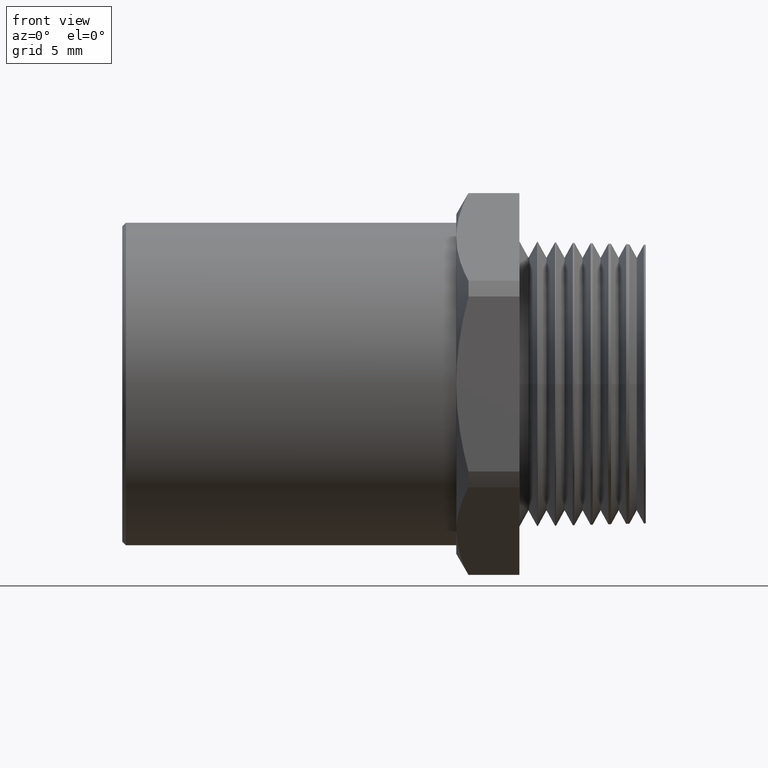
[diagram: clean part render]
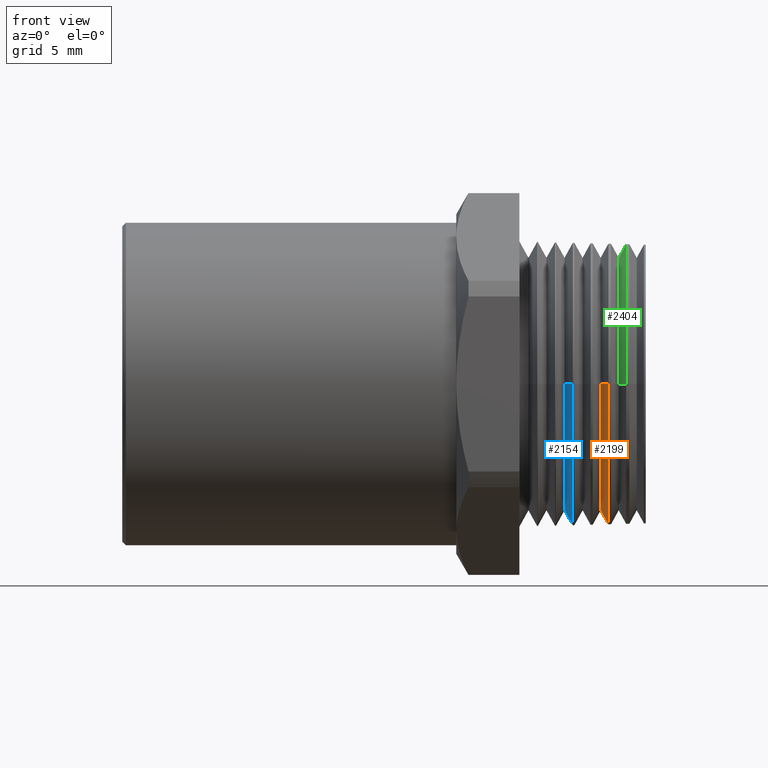
[diagram: same view with three faces highlighted in distinct colors, each labeled with its STEP entity id]
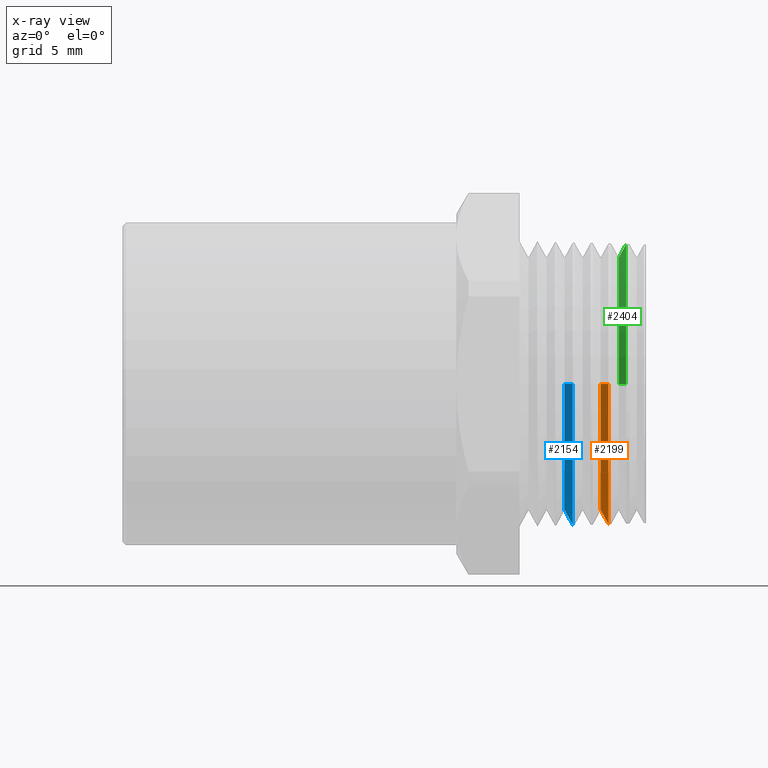
[diagram: x-ray of the same camera — body ghosted, the three highlighted faces saturated]
A machine part, front view with three faces highlighted in distinct colors.
The next image is the same camera in x-ray (body ghosted, the three faces saturated) — at least one of them is partly hidden behind the body in this view.
Their STEP definitions:

[orange] entity #2199 — the highlighted conical surface has half-angle 60 deg.
#1442 = CARTESIAN_POINT ( 'NONE',  ( -0.1249300749675650600, -5.302918518385447500E-017, 0.0000000000000000000 ) ) ;
#1445 = DIRECTION ( 'NONE',  ( 4.856409844776331700E-017, 1.000000000000000000, 0.0000000000000000000 ) ) ;
#1446 = DIRECTION ( 'NONE',  ( 1.000000000000000000, -3.789761643835506200E-017, 0.0000000000000000000 ) ) ;
#1447 = AXIS2_PLACEMENT_3D ( 'NONE', #1454, #1446, #1445 ) ;
#1449 = CONICAL_SURFACE ( 'NONE', #1447, 0.3515776161018801500, 1.047197551196605600 ) ;
#1450 = FACE_OUTER_BOUND ( 'NONE', #2156, .T. ) ;
#1454 = CARTESIAN_POINT ( 'NONE',  ( -0.1249300749675650600, -5.302918518385447500E-017, 0.0000000000000000000 ) ) ;
#1500 = DIRECTION ( 'NONE',  ( 4.856409844776331700E-017, 1.000000000000000000, 0.0000000000000000000 ) ) ;
#1501 = DIRECTION ( 'NONE',  ( 1.000000000000000000, -3.789761643835506200E-017, 0.0000000000000000000 ) ) ;
#1502 = AXIS2_PLACEMENT_3D ( 'NONE', #1442, #1501, #1500 ) ;
#1503 = CIRCLE ( 'NONE', #1502, 0.3515776161018801500 ) ;
#1595 = DIRECTION ( 'NONE',  ( 4.394328592221856100E-017, 1.000000000000000000, 0.0000000000000000000 ) ) ;
#1596 = DIRECTION ( 'NONE',  ( 1.000000000000000000, -3.789761643835506200E-017, 0.0000000000000000000 ) ) ;
#1597 = CARTESIAN_POINT ( 'NONE',  ( -0.1035855541350183700, 0.0000000000000000000, 0.0000000000000000000 ) ) ;
#1598 = AXIS2_PLACEMENT_3D ( 'NONE', #1597, #1596, #1595 ) ;
#1599 = CIRCLE ( 'NONE', #1598, 0.3885474106470649900 ) ;
#1630 = DIRECTION ( 'NONE',  ( 0.4999999999999932300, 0.8660254037844425900, 0.0000000000000000000 ) ) ;
#1631 = VECTOR ( 'NONE', #1630, 39.37007874015748100 ) ;
#1632 = CARTESIAN_POINT ( 'NONE',  ( -0.1249300749675650400, 0.3515776161018801000, 0.0000000000000000000 ) ) ;
#1633 = LINE ( 'NONE', #1632, #1631 ) ;
#1759 = DIRECTION ( 'NONE',  ( 4.394328592221856100E-017, 1.000000000000000000, 0.0000000000000000000 ) ) ;
#1760 = DIRECTION ( 'NONE',  ( 1.000000000000000000, -3.789761643835506200E-017, 0.0000000000000000000 ) ) ;
#1761 = CARTESIAN_POINT ( 'NONE',  ( -0.1035855541350183700, 0.0000000000000000000, 0.0000000000000000000 ) ) ;
#1762 = AXIS2_PLACEMENT_3D ( 'NONE', #1761, #1760, #1759 ) ;
#1763 = CIRCLE ( 'NONE', #1762, 0.3885474106470649900 ) ;
#1770 = CARTESIAN_POINT ( 'NONE',  ( -0.1035855541350183500, 0.3885474106470640500, 0.0000000000000000000 ) ) ;
#1799 = CARTESIAN_POINT ( 'NONE',  ( -0.1035855541350183800, -0.3885474106470641600, 4.758333427659192400E-017 ) ) ;
#1813 = CARTESIAN_POINT ( 'NONE',  ( -0.1035855541350183700, 4.758333427659204100E-017, -0.3885474106470649900 ) ) ;
#1828 = CARTESIAN_POINT ( 'NONE',  ( -0.1249300749675650400, 0.3515776161018801000, 4.538908665950691700E-017 ) ) ;
#1829 = CARTESIAN_POINT ( 'NONE',  ( -0.1249300749675650900, -0.3515776161018802600, 0.0000000000000000000 ) ) ;
#1830 = DIRECTION ( 'NONE',  ( 0.4999999999999931200, -0.8660254037844425900, 1.060575238724911700E-016 ) ) ;
#1831 = VECTOR ( 'NONE', #1830, 39.37007874015748100 ) ;
#1832 = CARTESIAN_POINT ( 'NONE',  ( -0.1249300749675650900, -0.3515776161018802600, 4.305584022110244700E-017 ) ) ;
#1836 = LINE ( 'NONE', #1832, #1831 ) ;
#2156 = EDGE_LOOP ( 'NONE', ( #2158, #2197, #2165, #2196, #2185 ) ) ;
#2158 = ORIENTED_EDGE ( 'NONE', *, *, #2381, .F. ) ;
#2165 = ORIENTED_EDGE ( 'NONE', *, *, #2307, .T. ) ;
#2185 = ORIENTED_EDGE ( 'NONE', *, *, #2293, .F. ) ;
#2196 = ORIENTED_EDGE ( 'NONE', *, *, #2356, .F. ) ;
#2197 = ORIENTED_EDGE ( 'NONE', *, *, #2206, .T. ) ;
#2199 = ADVANCED_FACE ( 'NONE', ( #1450 ), #1449, .T. ) ;
#2206 = EDGE_CURVE ( 'NONE', #2383, #2384, #1503, .T. ) ;
#2293 = EDGE_CURVE ( 'NONE', #2368, #2394, #1599, .T. ) ;
#2307 = EDGE_CURVE ( 'NONE', #2384, #2353, #1633, .T. ) ;
#2353 = VERTEX_POINT ( 'NONE', #1770 ) ;
#2356 = EDGE_CURVE ( 'NONE', #2394, #2353, #1763, .T. ) ;
#2368 = VERTEX_POINT ( 'NONE', #1799 ) ;
#2381 = EDGE_CURVE ( 'NONE', #2383, #2368, #1836, .T. ) ;
#2383 = VERTEX_POINT ( 'NONE', #1829 ) ;
#2384 = VERTEX_POINT ( 'NONE', #1828 ) ;
#2394 = VERTEX_POINT ( 'NONE', #1813 ) ;

[blue] entity #2154 — the highlighted conical surface has half-angle 60 deg.
#25 = EDGE_CURVE ( 'NONE', #28, #74, #381, .T. ) ;
#28 = VERTEX_POINT ( 'NONE', #376 ) ;
#29 = EDGE_CURVE ( 'NONE', #71, #69, #375, .T. ) ;
#69 = VERTEX_POINT ( 'NONE', #477 ) ;
#71 = VERTEX_POINT ( 'NONE', #472 ) ;
#74 = VERTEX_POINT ( 'NONE', #471 ) ;
#153 = EDGE_CURVE ( 'NONE', #2400, #69, #645, .T. ) ;
#156 = EDGE_CURVE ( 'NONE', #74, #2400, #703, .T. ) ;
#372 = DIRECTION ( 'NONE',  ( 0.4999999999999932300, 0.8660254037844425900, 0.0000000000000000000 ) ) ;
#373 = VECTOR ( 'NONE', #372, 39.37007874015748100 ) ;
#374 = CARTESIAN_POINT ( 'NONE',  ( -0.2249300749675650600, 0.3515776161018801000, 0.0000000000000000000 ) ) ;
#375 = LINE ( 'NONE', #374, #373 ) ;
#376 = CARTESIAN_POINT ( 'NONE',  ( -0.2249300749675650600, -0.3515776161018802600, 0.0000000000000000000 ) ) ;
#378 = DIRECTION ( 'NONE',  ( 0.4999999999999931200, -0.8660254037844425900, 1.060575238724911700E-016 ) ) ;
#379 = VECTOR ( 'NONE', #378, 39.37007874015748100 ) ;
#380 = CARTESIAN_POINT ( 'NONE',  ( -0.2249300749675650600, -0.3515776161018802600, 4.305584022110244700E-017 ) ) ;
#381 = LINE ( 'NONE', #380, #379 ) ;
#471 = CARTESIAN_POINT ( 'NONE',  ( -0.2020962255858389800, -0.3911270033634056700, 4.789924327290907800E-017 ) ) ;
#472 = CARTESIAN_POINT ( 'NONE',  ( -0.2249300749675650600, 0.3515776161018801000, 4.555189052660918200E-017 ) ) ;
#477 = CARTESIAN_POINT ( 'NONE',  ( -0.2020962255858389800, 0.3911270033634056100, 0.0000000000000000000 ) ) ;
#643 = CARTESIAN_POINT ( 'NONE',  ( -0.2020962255858389800, 0.0000000000000000000, 0.0000000000000000000 ) ) ;
#644 = AXIS2_PLACEMENT_3D ( 'NONE', #643, #705, #704 ) ;
#645 = CIRCLE ( 'NONE', #644, 0.3911270033634041100 ) ;
#646 = CARTESIAN_POINT ( 'NONE',  ( -0.2020962255858389800, 0.0000000000000000000, 0.0000000000000000000 ) ) ;
#700 = DIRECTION ( 'NONE',  ( 0.0000000000000000000, 1.000000000000000000, 0.0000000000000000000 ) ) ;
#701 = DIRECTION ( 'NONE',  ( 1.000000000000000000, -3.789761643835506200E-017, 0.0000000000000000000 ) ) ;
#702 = AXIS2_PLACEMENT_3D ( 'NONE', #646, #701, #700 ) ;
#703 = CIRCLE ( 'NONE', #702, 0.3911270033634041100 ) ;
#704 = DIRECTION ( 'NONE',  ( 0.0000000000000000000, 1.000000000000000000, 0.0000000000000000000 ) ) ;
#705 = DIRECTION ( 'NONE',  ( 1.000000000000000000, -3.789761643835506200E-017, 0.0000000000000000000 ) ) ;
#1343 = CIRCLE ( 'NONE', #1405, 0.3515776161018801500 ) ;
#1384 = DIRECTION ( 'NONE',  ( 0.0000000000000000000, 1.000000000000000000, 0.0000000000000000000 ) ) ;
#1385 = DIRECTION ( 'NONE',  ( 1.000000000000000000, -3.789761643835506200E-017, 0.0000000000000000000 ) ) ;
#1386 = AXIS2_PLACEMENT_3D ( 'NONE', #1388, #1385, #1384 ) ;
#1387 = CONICAL_SURFACE ( 'NONE', #1386, 0.3515776161018801500, 1.047197551196605600 ) ;
#1388 = CARTESIAN_POINT ( 'NONE',  ( -0.2249300749675650600, -4.923942354001896300E-017, 0.0000000000000000000 ) ) ;
#1389 = FACE_OUTER_BOUND ( 'NONE', #2147, .T. ) ;
#1402 = DIRECTION ( 'NONE',  ( 0.0000000000000000000, 1.000000000000000000, 0.0000000000000000000 ) ) ;
#1403 = DIRECTION ( 'NONE',  ( 1.000000000000000000, -3.789761643835506200E-017, 0.0000000000000000000 ) ) ;
#1404 = CARTESIAN_POINT ( 'NONE',  ( -0.2249300749675650600, -4.923942354001896300E-017, 0.0000000000000000000 ) ) ;
#1405 = AXIS2_PLACEMENT_3D ( 'NONE', #1404, #1403, #1402 ) ;
#1863 = CARTESIAN_POINT ( 'NONE',  ( -0.2020962255858389800, 4.789924327290888700E-017, -0.3911270033634041100 ) ) ;
#2142 = ORIENTED_EDGE ( 'NONE', *, *, #25, .F. ) ;
#2147 = EDGE_LOOP ( 'NONE', ( #2142, #2171, #2167, #2170, #2166 ) ) ;
#2148 = EDGE_CURVE ( 'NONE', #28, #71, #1343, .T. ) ;
#2154 = ADVANCED_FACE ( 'NONE', ( #1389 ), #1387, .T. ) ;
#2166 = ORIENTED_EDGE ( 'NONE', *, *, #156, .F. ) ;
#2167 = ORIENTED_EDGE ( 'NONE', *, *, #29, .T. ) ;
#2170 = ORIENTED_EDGE ( 'NONE', *, *, #153, .F. ) ;
#2171 = ORIENTED_EDGE ( 'NONE', *, *, #2148, .T. ) ;
#2400 = VERTEX_POINT ( 'NONE', #1863 ) ;

[green] entity #2404 — the highlighted conical surface has half-angle 60 deg.
#1665 = CARTESIAN_POINT ( 'NONE',  ( -0.05433021840960587000, 0.0000000000000000000, 0.3872576142888953800 ) ) ;
#1698 = CARTESIAN_POINT ( 'NONE',  ( -0.05433021840960585600, 0.3872576142888969300, 0.0000000000000000000 ) ) ;
#1709 = DIRECTION ( 'NONE',  ( 4.408964299321523400E-017, 1.000000000000000000, 0.0000000000000000000 ) ) ;
#1710 = DIRECTION ( 'NONE',  ( 1.000000000000000000, -3.789761643835506200E-017, 0.0000000000000000000 ) ) ;
#1711 = CARTESIAN_POINT ( 'NONE',  ( -0.05433021840960587000, 0.0000000000000000000, 0.0000000000000000000 ) ) ;
#1712 = AXIS2_PLACEMENT_3D ( 'NONE', #1711, #1710, #1709 ) ;
#1713 = CIRCLE ( 'NONE', #1712, 0.3872576142888953800 ) ;
#1714 = DIRECTION ( 'NONE',  ( 0.4999999999999932300, 0.8660254037844425900, 0.0000000000000000000 ) ) ;
#1715 = VECTOR ( 'NONE', #1714, 39.37007874015748100 ) ;
#1716 = CARTESIAN_POINT ( 'NONE',  ( -0.07493007496756502700, 0.3515776161018801000, 0.0000000000000000000 ) ) ;
#1720 = LINE ( 'NONE', #1716, #1715 ) ;
#1747 = DIRECTION ( 'NONE',  ( 4.408964299321523400E-017, 1.000000000000000000, 0.0000000000000000000 ) ) ;
#1748 = DIRECTION ( 'NONE',  ( 1.000000000000000000, -3.789761643835506200E-017, 0.0000000000000000000 ) ) ;
#1749 = CARTESIAN_POINT ( 'NONE',  ( -0.05433021840960587000, 0.0000000000000000000, 0.0000000000000000000 ) ) ;
#1750 = AXIS2_PLACEMENT_3D ( 'NONE', #1749, #1748, #1747 ) ;
#1751 = CIRCLE ( 'NONE', #1750, 0.3872576142888953800 ) ;
#1758 = CARTESIAN_POINT ( 'NONE',  ( -0.05433021840960589000, -0.3872576142888971000, 4.742537977843380900E-017 ) ) ;
#1798 = CARTESIAN_POINT ( 'NONE',  ( -0.07493007496756506900, -0.3515776161018802600, 0.0000000000000000000 ) ) ;
#1800 = DIRECTION ( 'NONE',  ( 0.4999999999999931200, -0.8660254037844425900, 1.060575238724911700E-016 ) ) ;
#1801 = VECTOR ( 'NONE', #1800, 39.37007874015748100 ) ;
#1802 = CARTESIAN_POINT ( 'NONE',  ( -0.07493007496756506900, -0.3515776161018802600, 4.305584022110244700E-017 ) ) ;
#1803 = LINE ( 'NONE', #1802, #1801 ) ;
#1852 = DIRECTION ( 'NONE',  ( 4.856409844776331700E-017, 1.000000000000000000, 0.0000000000000000000 ) ) ;
#1853 = DIRECTION ( 'NONE',  ( 1.000000000000000000, -3.789761643835506200E-017, 0.0000000000000000000 ) ) ;
#1854 = AXIS2_PLACEMENT_3D ( 'NONE', #1856, #1853, #1852 ) ;
#1855 = CONICAL_SURFACE ( 'NONE', #1854, 0.3515776161018801500, 1.047197551196605600 ) ;
#1856 = CARTESIAN_POINT ( 'NONE',  ( -0.07493007496756505500, -5.492406600577222200E-017, 0.0000000000000000000 ) ) ;
#1857 = FACE_OUTER_BOUND ( 'NONE', #2414, .T. ) ;
#1890 = CARTESIAN_POINT ( 'NONE',  ( -0.07493007496756502700, 0.3515776161018801000, 4.530768472595578100E-017 ) ) ;
#1891 = DIRECTION ( 'NONE',  ( 4.856409844776331700E-017, 1.000000000000000000, 0.0000000000000000000 ) ) ;
#1892 = DIRECTION ( 'NONE',  ( 1.000000000000000000, -3.789761643835506200E-017, 0.0000000000000000000 ) ) ;
#1893 = CARTESIAN_POINT ( 'NONE',  ( -0.07493007496756505500, -5.492406600577222200E-017, 0.0000000000000000000 ) ) ;
#1894 = AXIS2_PLACEMENT_3D ( 'NONE', #1893, #1892, #1891 ) ;
#1895 = CIRCLE ( 'NONE', #1894, 0.3515776161018801500 ) ;
#2325 = VERTEX_POINT ( 'NONE', #1665 ) ;
#2328 = ORIENTED_EDGE ( 'NONE', *, *, #2337, .F. ) ;
#2330 = ORIENTED_EDGE ( 'NONE', *, *, #2336, .F. ) ;
#2336 = EDGE_CURVE ( 'NONE', #2413, #2341, #1720, .T. ) ;
#2337 = EDGE_CURVE ( 'NONE', #2341, #2325, #1713, .T. ) ;
#2341 = VERTEX_POINT ( 'NONE', #1698 ) ;
#2359 = VERTEX_POINT ( 'NONE', #1758 ) ;
#2362 = EDGE_CURVE ( 'NONE', #2325, #2359, #1751, .T. ) ;
#2363 = ORIENTED_EDGE ( 'NONE', *, *, #2362, .F. ) ;
#2365 = ORIENTED_EDGE ( 'NONE', *, *, #2367, .T. ) ;
#2367 = EDGE_CURVE ( 'NONE', #2370, #2359, #1803, .T. ) ;
#2370 = VERTEX_POINT ( 'NONE', #1798 ) ;
#2404 = ADVANCED_FACE ( 'NONE', ( #1857 ), #1855, .T. ) ;
#2412 = EDGE_CURVE ( 'NONE', #2413, #2370, #1895, .T. ) ;
#2413 = VERTEX_POINT ( 'NONE', #1890 ) ;
#2414 = EDGE_LOOP ( 'NONE', ( #2418, #2365, #2363, #2328, #2330 ) ) ;
#2418 = ORIENTED_EDGE ( 'NONE', *, *, #2412, .T. ) ;